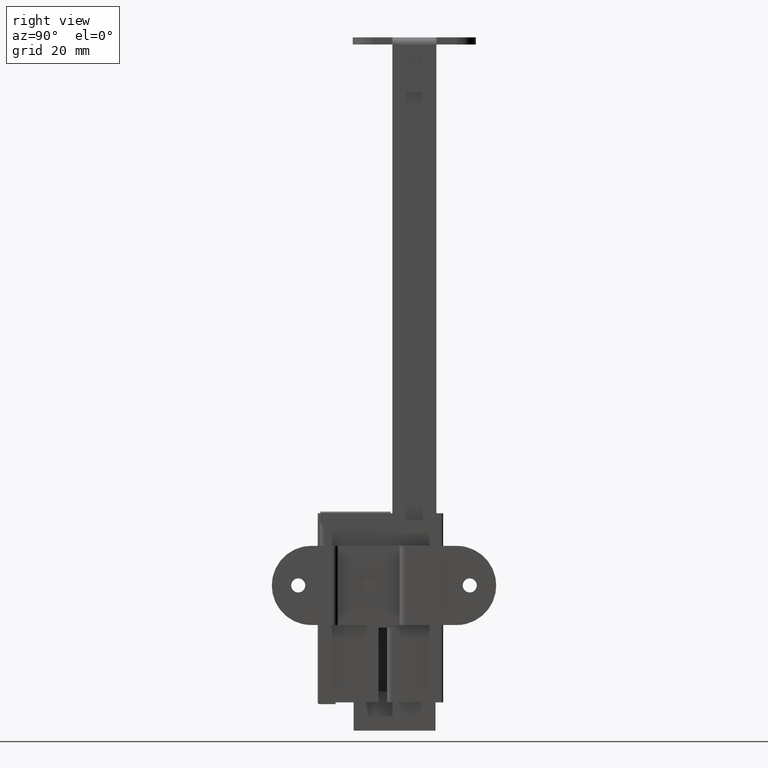
[diagram: clean part render]
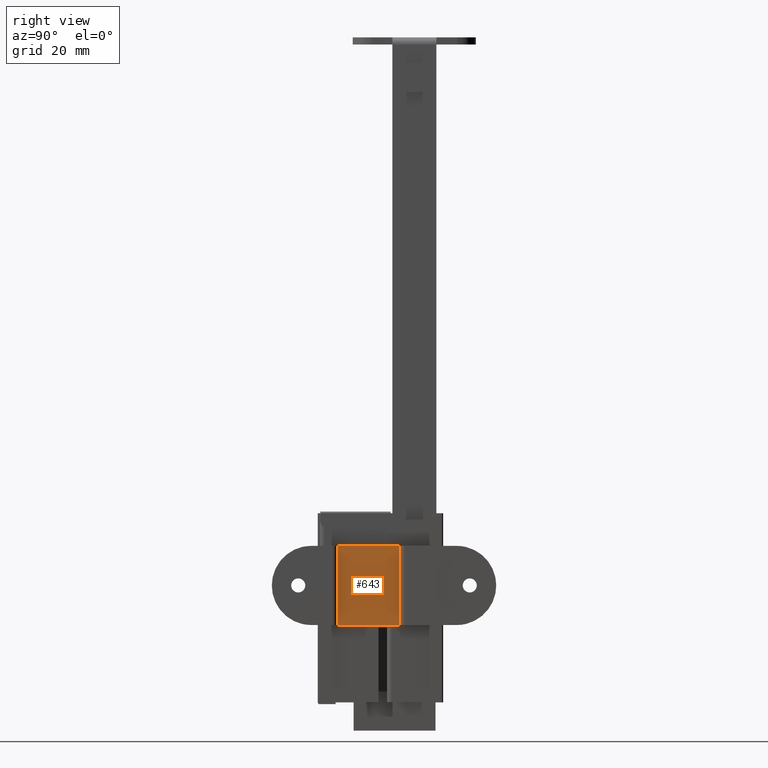
[diagram: same view with one face highlighted and labeled with its STEP entity id]
A machine part, right view. The second image highlights one B-rep face of the part: STEP entity #643.
In plain terms, the highlighted face is a freeform B-spline surface patch.
Its self-contained STEP definition (entity closure, byte-faithful):
#62=CARTESIAN_POINT('',(7.200009000000170,-8.911594679491556,-190.186177004957300));
#63=VERTEX_POINT('',#62);
#64=CARTESIAN_POINT('',(7.200009000000170,-10.399994000000000,-191.499985000000010));
#65=VERTEX_POINT('',#64);
#66=CARTESIAN_POINT('',(7.200009000000170,-8.911594679491556,-190.186177004957300));
#67=CARTESIAN_POINT('',(7.200009000000170,-9.075946103069366,-191.499985000000010));
#68=CARTESIAN_POINT('',(7.200009000000170,-10.399994000000000,-191.499985000000010));
#76=(BOUNDED_CURVE()B_SPLINE_CURVE(2,(#66,#67,#68),.UNSPECIFIED.,.F.,.U.)B_SPLINE_CURVE_WITH_KNOTS((3,3),(0.271473929387108,0.500000000000000),.UNSPECIFIED.)CURVE()GEOMETRIC_REPRESENTATION_ITEM()RATIONAL_B_SPLINE_CURVE((0.954005429466635,0.732265054381599,1.0))REPRESENTATION_ITEM(''));
#77=EDGE_CURVE('',#63,#65,#76,.T.);
#118=CARTESIAN_POINT('',(7.200009000000170,-11.899936884579970,-189.986895194885700));
#119=VERTEX_POINT('',#118);
#125=CARTESIAN_POINT('',(7.200009000000170,-10.399994000000000,-191.499985000000010));
#126=CARTESIAN_POINT('',(7.200009000000170,-11.899994000000000,-191.499985000000070));
#127=CARTESIAN_POINT('',(7.200009000000170,-11.899994000000000,-189.999985000000010));
#128=CARTESIAN_POINT('',(7.200009000000171,-11.899993999999996,-189.993439971902180));
#129=CARTESIAN_POINT('',(7.200009000000170,-11.899936884579963,-189.986895194885730));
#137=(BOUNDED_CURVE()B_SPLINE_CURVE(2,(#125,#126,#127,#128,#129),.UNSPECIFIED.,.F.,.U.)B_SPLINE_CURVE_WITH_KNOTS((3,2,3),(0.500000000000000,0.750000000000000,0.751539894773409),.UNSPECIFIED.)CURVE()GEOMETRIC_REPRESENTATION_ITEM()RATIONAL_B_SPLINE_CURVE((1.0,0.707106781186548,1.0,0.998195901052728,0.996414027085774))REPRESENTATION_ITEM(''));
#138=EDGE_CURVE('',#65,#119,#137,.T.);
#165=CARTESIAN_POINT('',(7.200009000000170,-10.399994000000000,-188.499985000000010));
#166=VERTEX_POINT('',#165);
#167=CARTESIAN_POINT('',(7.200009000000170,-10.399994000000000,-188.499985000000010));
#168=CARTESIAN_POINT('',(7.200009000000170,-8.899994000000000,-188.499985000000010));
#169=CARTESIAN_POINT('',(7.200009000000170,-8.899994000000000,-189.999985000000010));
#170=CARTESIAN_POINT('',(7.200009000000171,-8.899994000000000,-190.093442393159280));
#171=CARTESIAN_POINT('',(7.200009000000170,-8.911594679491556,-190.186177004957300));
#179=(BOUNDED_CURVE()B_SPLINE_CURVE(2,(#167,#168,#169,#170,#171),.UNSPECIFIED.,.F.,.U.)B_SPLINE_CURVE_WITH_KNOTS((3,2,3),(0.0,0.250000000000000,0.271473929387108),.UNSPECIFIED.)CURVE()GEOMETRIC_REPRESENTATION_ITEM()RATIONAL_B_SPLINE_CURVE((1.0,0.707106781186548,1.0,0.974841726804949,0.954005429466635))REPRESENTATION_ITEM(''));
#180=EDGE_CURVE('',#166,#63,#179,.T.);
#182=CARTESIAN_POINT('',(7.200009000000170,-11.899936884579962,-189.986895194885680));
#183=CARTESIAN_POINT('',(7.200009000000170,-11.886960812191237,-188.499985000000070));
#184=CARTESIAN_POINT('',(7.200009000000170,-10.399994000000000,-188.499985000000010));
#192=(BOUNDED_CURVE()B_SPLINE_CURVE(2,(#182,#183,#184),.UNSPECIFIED.,.F.,.U.)B_SPLINE_CURVE_WITH_KNOTS((3,3),(0.751539894773410,1.0),.UNSPECIFIED.)CURVE()GEOMETRIC_REPRESENTATION_ITEM()RATIONAL_B_SPLINE_CURVE((0.996414027085773,0.708910880133819,1.0))REPRESENTATION_ITEM(''));
#193=EDGE_CURVE('',#119,#166,#192,.T.);
#602=CARTESIAN_POINT('',(7.200009000000181,-18.099301578599391,-199.899084796141410));
#603=CARTESIAN_POINT('',(7.200009000000181,-18.099301578599391,-180.100884560128410));
#604=CARTESIAN_POINT('',(7.200009000000181,-2.700701670382137,-199.899084796141410));
#605=CARTESIAN_POINT('',(7.200009000000181,-2.700701670382137,-180.100884560128410));
#606=B_SPLINE_SURFACE_WITH_KNOTS('',1,1,((#602,#604),(#603,#605)),.UNSPECIFIED.,.F.,.F.,.U.,(2,2),(2,2),(0.0,19.798200236012971),(0.0,15.398599908217250),.UNSPECIFIED.);
#607=CARTESIAN_POINT('',(7.200009000000181,-3.400002000000000,-180.999985000000010));
#608=VERTEX_POINT('',#607);
#609=CARTESIAN_POINT('',(7.200009000000181,-17.400002000000050,-180.999985000000010));
#610=VERTEX_POINT('',#609);
#611=CARTESIAN_POINT('',(7.200009000000181,-3.400002000000000,-180.999985000000010));
#612=CARTESIAN_POINT('',(7.200009000000181,-17.400002000000050,-180.999985000000010));
#613=QUASI_UNIFORM_CURVE('',1,(#611,#612),.UNSPECIFIED.,.F.,.U.);
#614=EDGE_CURVE('',#608,#610,#613,.T.);
#615=ORIENTED_EDGE('',*,*,#614,.T.);
#616=CARTESIAN_POINT('',(7.200009000000181,-17.400002000000050,-198.999985000000010));
#617=VERTEX_POINT('',#616);
#618=CARTESIAN_POINT('',(7.200009000000181,-17.400002000000050,-198.999985000000010));
#619=CARTESIAN_POINT('',(7.200009000000181,-17.400002000000050,-180.999985000000010));
#620=QUASI_UNIFORM_CURVE('',1,(#618,#619),.UNSPECIFIED.,.F.,.U.);
#621=EDGE_CURVE('',#617,#610,#620,.T.);
#622=ORIENTED_EDGE('',*,*,#621,.F.);
#623=CARTESIAN_POINT('',(7.200009000000181,-3.400002000000000,-198.999985000000010));
#624=VERTEX_POINT('',#623);
#625=CARTESIAN_POINT('',(7.200009000000181,-3.400002000000000,-198.999985000000010));
#626=CARTESIAN_POINT('',(7.200009000000181,-17.400002000000050,-198.999985000000010));
#627=QUASI_UNIFORM_CURVE('',1,(#625,#626),.UNSPECIFIED.,.F.,.U.);
#628=EDGE_CURVE('',#624,#617,#627,.T.);
#629=ORIENTED_EDGE('',*,*,#628,.F.);
#630=CARTESIAN_POINT('',(7.200009000000181,-3.400002000000000,-198.999985000000010));
#631=CARTESIAN_POINT('',(7.200009000000181,-3.400002000000000,-180.999985000000010));
#632=QUASI_UNIFORM_CURVE('',1,(#630,#631),.UNSPECIFIED.,.F.,.U.);
#633=EDGE_CURVE('',#624,#608,#632,.T.);
#634=ORIENTED_EDGE('',*,*,#633,.T.);
#635=EDGE_LOOP('',(#615,#622,#629,#634));
#636=FACE_OUTER_BOUND('',#635,.T.);
#637=ORIENTED_EDGE('',*,*,#138,.T.);
#638=ORIENTED_EDGE('',*,*,#193,.T.);
#639=ORIENTED_EDGE('',*,*,#180,.T.);
#640=ORIENTED_EDGE('',*,*,#77,.T.);
#641=EDGE_LOOP('',(#637,#638,#639,#640));
#642=FACE_BOUND('',#641,.T.);
#643=ADVANCED_FACE('',(#636,#642),#606,.F.);